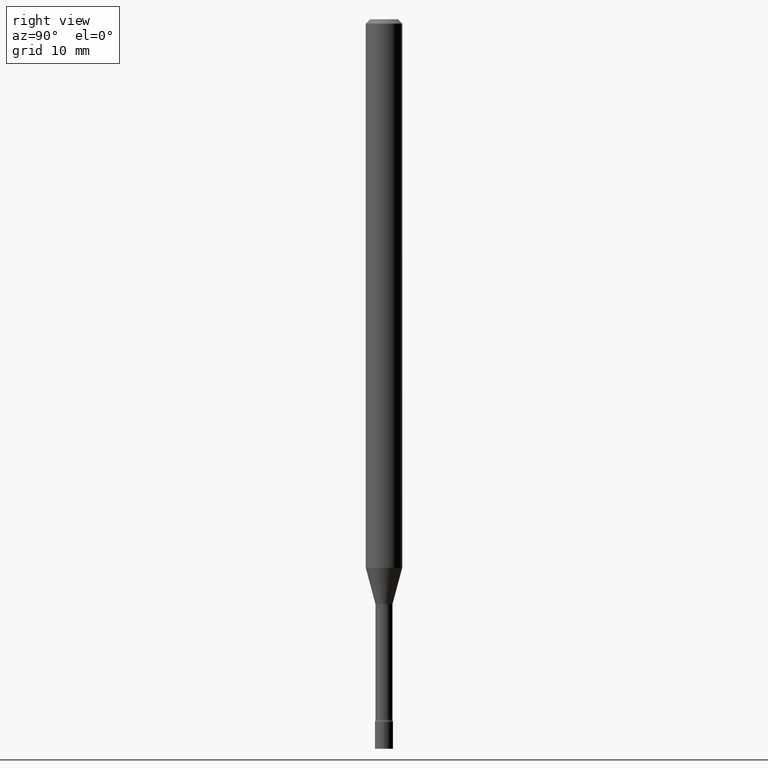
[diagram: clean part render]
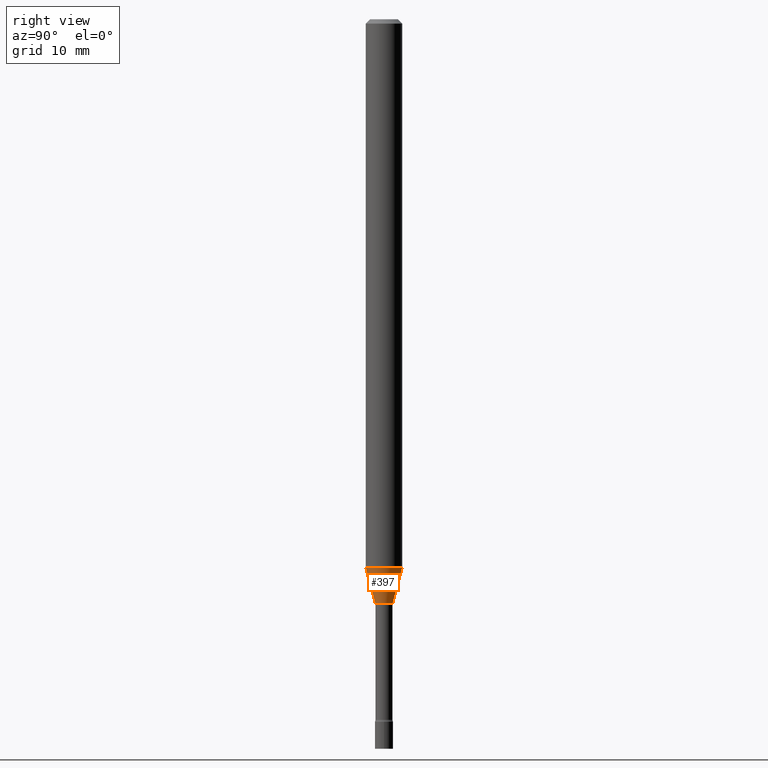
[diagram: same view with one face highlighted and labeled with its STEP entity id]
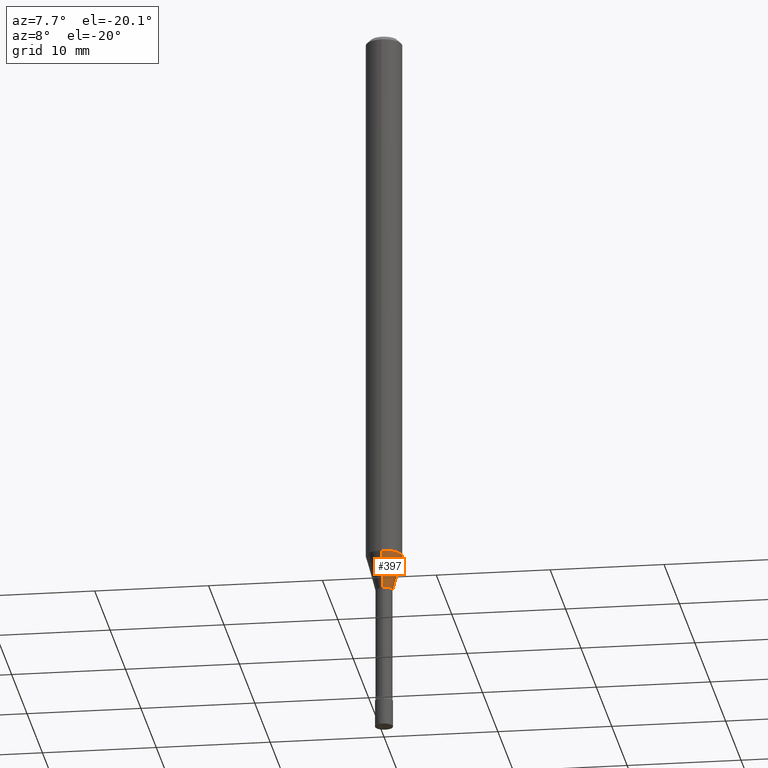
[diagram: same view with one face highlighted and labeled with its STEP entity id]
A machine part, right view. The second image highlights one B-rep face of the part: STEP entity #397.
A second angle (auxiliary view) of the same face is appended — the face is thin or edge-on in the first view.
In plain terms, the highlighted conical surface has half-angle 15 deg.
Its self-contained STEP definition (entity closure, byte-faithful):
#6 = CARTESIAN_POINT ( 'NONE',  ( 3.274220454076633282E-16, 0.02966111260565699667, -2.002092501787273271 ) ) ;
#47 = DIRECTION ( 'NONE',  ( -1.807323732225324617E-15, -0.2588190451025174088, 0.9659258262890690894 ) ) ;
#58 = CARTESIAN_POINT ( 'NONE',  ( -4.364351673553458169E-16, -0.06250000000000659195, -1.879536105567577886 ) ) ;
#65 = FACE_OUTER_BOUND ( 'NONE', #495, .T. ) ;
#66 = LINE ( 'NONE', #442, #191 ) ;
#71 = VERTEX_POINT ( 'NONE', #6 ) ;
#99 = EDGE_CURVE ( 'NONE', #312, #234, #66, .T. ) ;
#102 = DIRECTION ( 'NONE',  ( -2.445480495465296209E-29, 3.491464599128644458E-15, 1.000000000000000000 ) ) ;
#103 = CIRCLE ( 'NONE', #159, 0.06250000000000000000 ) ;
#105 = DIRECTION ( 'NONE',  ( -2.445480495465296209E-29, 3.491464599128644458E-15, 1.000000000000000000 ) ) ;
#122 = AXIS2_PLACEMENT_3D ( 'NONE', #220, #215, #341 ) ;
#137 = DIRECTION ( 'NONE',  ( -6.982962677686265922E-15, -1.000000000000000000, 4.370956789862821150E-15 ) ) ;
#140 = DIRECTION ( 'NONE',  ( -6.982962677686265922E-15, -1.000000000000000000, 0.000000000000000000 ) ) ;
#151 = CIRCLE ( 'NONE', #374, 0.02966111260566398414 ) ;
#159 = AXIS2_PLACEMENT_3D ( 'NONE', #178, #105, #137 ) ;
#160 = ORIENTED_EDGE ( 'NONE', *, *, #393, .F. ) ;
#178 = CARTESIAN_POINT ( 'NONE',  ( 4.596368886688314482E-29, -6.562333775373317766E-15, -1.879536105567578330 ) ) ;
#187 = ORIENTED_EDGE ( 'NONE', *, *, #329, .T. ) ;
#191 = VECTOR ( 'NONE', #47, 39.37007874015748854 ) ;
#210 = CARTESIAN_POINT ( 'NONE',  ( 2.107548809652177439E-16, 0.02966111260565699320, -2.002092501787273271 ) ) ;
#215 = DIRECTION ( 'NONE',  ( -2.445480495465296209E-29, 3.491464599128644458E-15, 1.000000000000000000 ) ) ;
#220 = CARTESIAN_POINT ( 'NONE',  ( 4.896078163238095355E-29, -6.990235094171167377E-15, -2.002092501787273271 ) ) ;
#223 = CARTESIAN_POINT ( 'NONE',  ( 4.896078163238095355E-29, -6.990235094171167377E-15, -2.002092501787273271 ) ) ;
#234 = VERTEX_POINT ( 'NONE', #58 ) ;
#304 = EDGE_CURVE ( 'NONE', #71, #463, #372, .T. ) ;
#312 = VERTEX_POINT ( 'NONE', #419 ) ;
#329 = EDGE_CURVE ( 'NONE', #312, #71, #151, .T. ) ;
#332 = CARTESIAN_POINT ( 'NONE',  ( 4.440892098501083701E-16, 0.06249999999999340805, -1.879536105567578552 ) ) ;
#341 = DIRECTION ( 'NONE',  ( -6.982962677686265922E-15, -1.000000000000000000, 0.000000000000000000 ) ) ;
#349 = CONICAL_SURFACE ( 'NONE', #122, 0.02966111260566398414, 0.2617993877991495189 ) ;
#369 = DIRECTION ( 'NONE',  ( 1.839019923739594793E-15, 0.2588190451025241812, 0.9659258262890673130 ) ) ;
#372 = LINE ( 'NONE', #210, #467 ) ;
#374 = AXIS2_PLACEMENT_3D ( 'NONE', #223, #102, #140 ) ;
#393 = EDGE_CURVE ( 'NONE', #234, #463, #103, .T. ) ;
#397 = ADVANCED_FACE ( 'NONE', ( #65 ), #349, .T. ) ;
#419 = CARTESIAN_POINT ( 'NONE',  ( -2.071224423039522682E-16, -0.02966111260567097854, -2.002092501787273271 ) ) ;
#442 = CARTESIAN_POINT ( 'NONE',  ( -2.071224423039522682E-16, -0.02966111260567097854, -2.002092501787273271 ) ) ;
#463 = VERTEX_POINT ( 'NONE', #332 ) ;
#467 = VECTOR ( 'NONE', #369, 39.37007874015748854 ) ;
#485 = ORIENTED_EDGE ( 'NONE', *, *, #99, .F. ) ;
#495 = EDGE_LOOP ( 'NONE', ( #187, #501, #160, #485 ) ) ;
#501 = ORIENTED_EDGE ( 'NONE', *, *, #304, .T. ) ;